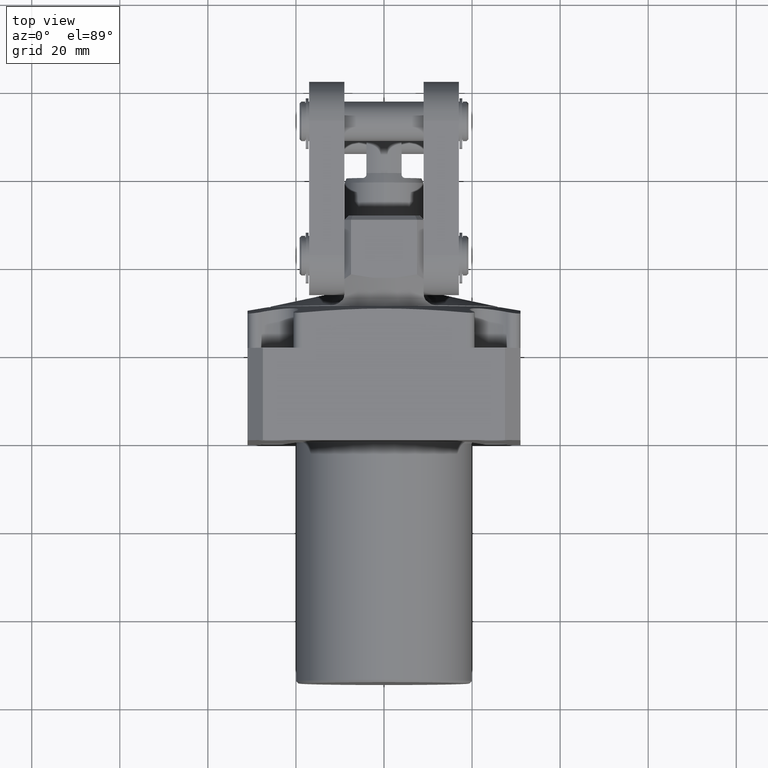
[diagram: clean part render]
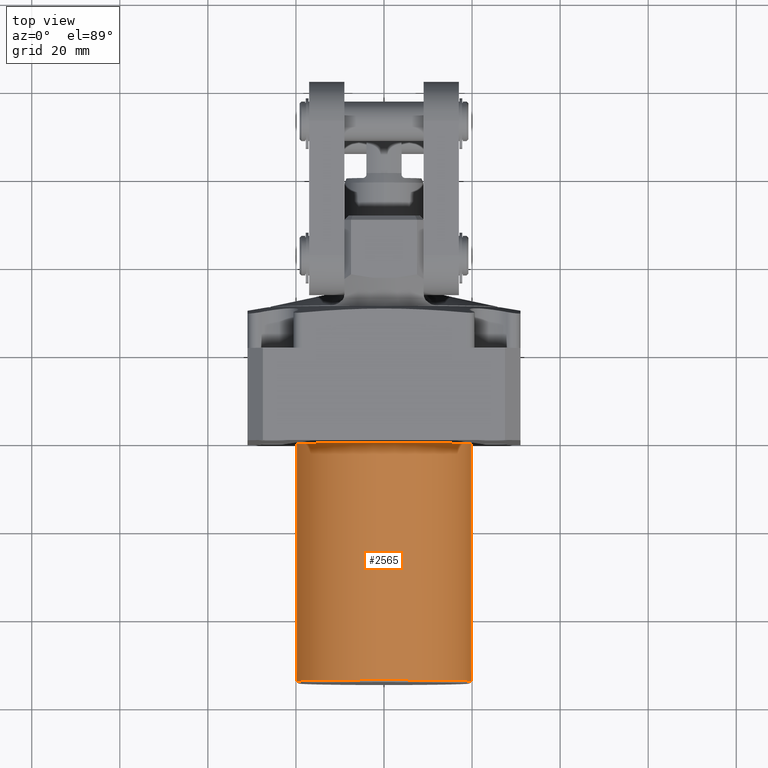
[diagram: same view with one face highlighted and labeled with its STEP entity id]
A machine part, top view. The second image highlights one B-rep face of the part: STEP entity #2565.
In plain terms, the highlighted cylindrical surface (partial cylindrical patch) has radius 19.8882 mm, axis along (0, -1, 0).
Its self-contained STEP definition (entity closure, byte-faithful):
#584=CARTESIAN_POINT('',(0.E0,-2.137299496070E0,0.E0));
#585=DIRECTION('',(0.E0,-1.E0,0.E0));
#586=DIRECTION('',(1.E0,0.E0,0.E0));
#587=AXIS2_PLACEMENT_3D('',#584,#585,#586);
#592=CARTESIAN_POINT('',(0.E0,-1.57E-2,0.E0));
#593=DIRECTION('',(0.E0,1.E0,0.E0));
#594=DIRECTION('',(-1.E0,0.E0,0.E0));
#595=AXIS2_PLACEMENT_3D('',#592,#593,#594);
#638=DIRECTION('',(-3.394925658529E-7,-9.999999999999E-1,1.728695645226E-10));
#639=VECTOR('',#638,2.121599279855E0);
#640=CARTESIAN_POINT('',(7.83E-1,-1.57E-2,-1.094785922232E-13));
#641=LINE('',#640,#639);
#653=DIRECTION('',(3.394925660622E-7,-9.999999999999E-1,-1.728696605043E-10));
#654=VECTOR('',#653,2.121599279855E0);
#655=CARTESIAN_POINT('',(-7.83E-1,-1.57E-2,1.094489819108E-13));
#656=LINE('',#655,#654);
#1940=CARTESIAN_POINT('',(7.83E-1,-2.137299496070E0,0.E0));
#1941=CARTESIAN_POINT('',(-7.83E-1,-2.137299496070E0,0.E0));
#1942=VERTEX_POINT('',#1940);
#1943=VERTEX_POINT('',#1941);
#1944=CARTESIAN_POINT('',(-7.83E-1,-1.57E-2,0.E0));
#1945=CARTESIAN_POINT('',(7.83E-1,-1.57E-2,0.E0));
#1946=VERTEX_POINT('',#1944);
#1947=VERTEX_POINT('',#1945);
#2551=CARTESIAN_POINT('',(0.E0,1.0785E-1,0.E0));
#2552=DIRECTION('',(0.E0,-1.E0,0.E0));
#2553=DIRECTION('',(-1.E0,0.E0,0.E0));
#2554=AXIS2_PLACEMENT_3D('',#2551,#2552,#2553);
#2555=CYLINDRICAL_SURFACE('',#2554,7.83E-1);
#2557=ORIENTED_EDGE('',*,*,#2556,.T.);
#2559=ORIENTED_EDGE('',*,*,#2558,.F.);
#2560=ORIENTED_EDGE('',*,*,#2541,.T.);
#2562=ORIENTED_EDGE('',*,*,#2561,.T.);
#2563=EDGE_LOOP('',(#2557,#2559,#2560,#2562));
#2564=FACE_OUTER_BOUND('',#2563,.F.);
#588=CIRCLE('',#587,7.83E-1);
#596=CIRCLE('',#595,7.83E-1);
#2541=EDGE_CURVE('',#1946,#1947,#596,.T.);
#2556=EDGE_CURVE('',#1942,#1943,#588,.T.);
#2558=EDGE_CURVE('',#1946,#1943,#656,.T.);
#2561=EDGE_CURVE('',#1947,#1942,#641,.T.);
#2565=ADVANCED_FACE('',(#2564),#2555,.T.);